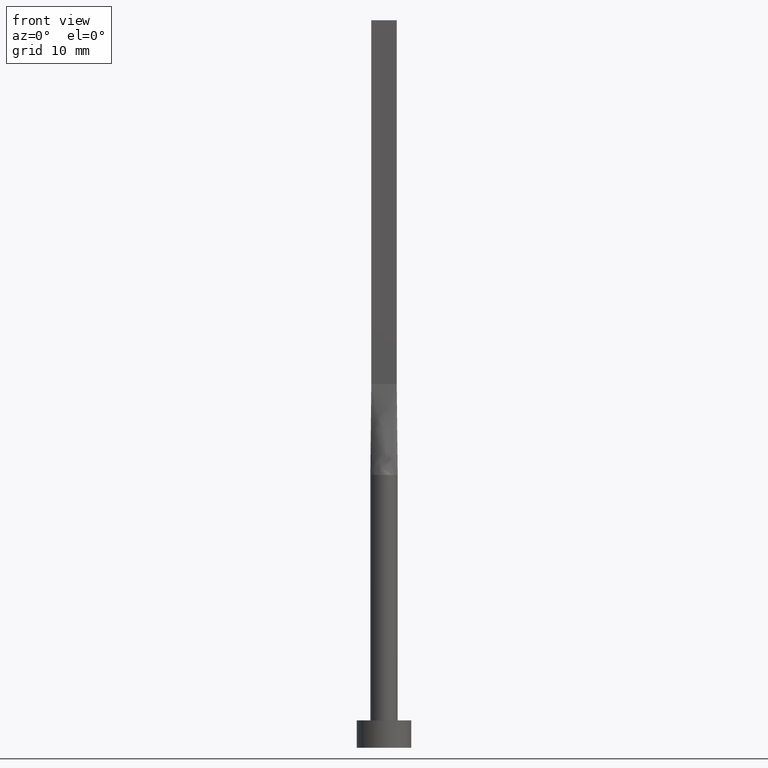
[diagram: clean part render]
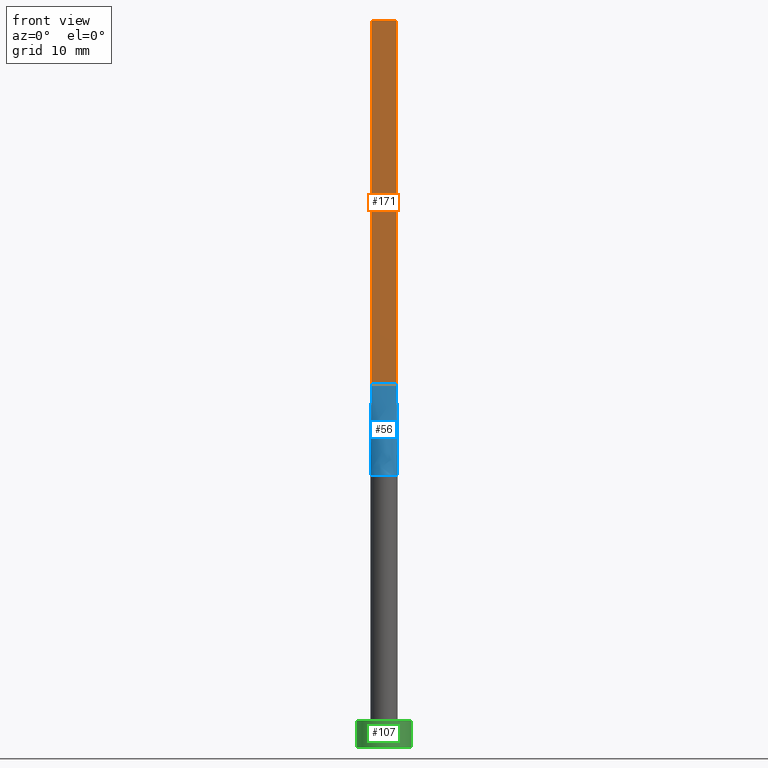
[diagram: same view with three faces highlighted in distinct colors, each labeled with its STEP entity id]
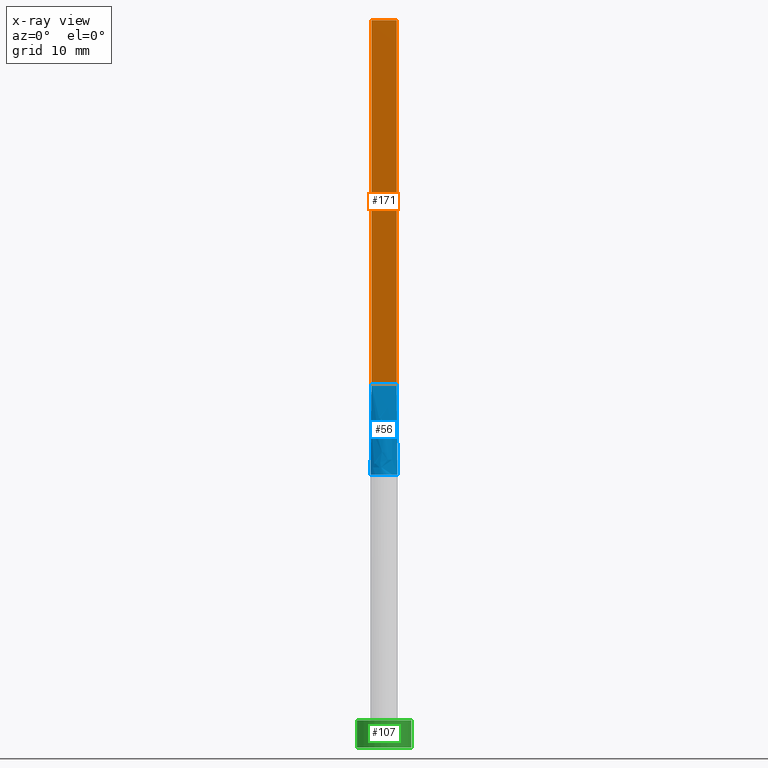
[diagram: x-ray of the same camera — body ghosted, the three highlighted faces saturated]
A machine part, front view with three faces highlighted in distinct colors.
The next image is the same camera in x-ray (body ghosted, the three faces saturated) — at least one of them is partly hidden behind the body in this view.
Their STEP definitions:

[orange] entity #171 — the highlighted planar face has unit normal (0, 1, -0).
#42 = EDGE_CURVE ( 'NONE', #307, #102, #297, .T. ) ;
#81 = LINE ( 'NONE', #575, #174 ) ;
#102 = VERTEX_POINT ( 'NONE', #488 ) ;
#103 = EDGE_CURVE ( 'NONE', #548, #376, #317, .T. ) ;
#104 = AXIS2_PLACEMENT_3D ( 'NONE', #170, #350, #211 ) ;
#143 = VECTOR ( 'NONE', #180, 1000.000000000000000 ) ;
#170 = CARTESIAN_POINT ( 'NONE',  ( -1.399999999999999911, -0.2499999999999996392, 80.00000000000000000 ) ) ;
#171 = ADVANCED_FACE ( 'NONE', ( #569 ), #389, .F. ) ;
#173 = DIRECTION ( 'NONE',  ( -0.000000000000000000, -0.000000000000000000, -1.000000000000000000 ) ) ;
#174 = VECTOR ( 'NONE', #173, 1000.000000000000000 ) ;
#180 = DIRECTION ( 'NONE',  ( 1.000000000000000000, -5.808225924029488744E-17, 0.000000000000000000 ) ) ;
#184 = VECTOR ( 'NONE', #257, 1000.000000000000000 ) ;
#204 = EDGE_CURVE ( 'NONE', #102, #376, #347, .T. ) ;
#211 = DIRECTION ( 'NONE',  ( -1.000000000000000000, 5.808225924029488744E-17, 0.000000000000000000 ) ) ;
#220 = CARTESIAN_POINT ( 'NONE',  ( -1.399999999999999911, -0.2499999999999996392, 80.00000000000000000 ) ) ;
#230 = CARTESIAN_POINT ( 'NONE',  ( 1.399999999999999911, -0.2499999999999997780, 40.00000000000000000 ) ) ;
#232 = ORIENTED_EDGE ( 'NONE', *, *, #272, .T. ) ;
#257 = DIRECTION ( 'NONE',  ( -0.000000000000000000, -0.000000000000000000, -1.000000000000000000 ) ) ;
#272 = EDGE_CURVE ( 'NONE', #307, #548, #81, .T. ) ;
#291 = ORIENTED_EDGE ( 'NONE', *, *, #103, .T. ) ;
#297 = LINE ( 'NONE', #300, #143 ) ;
#300 = CARTESIAN_POINT ( 'NONE',  ( -1.399999999999999911, -0.2499999999999996392, 80.00000000000000000 ) ) ;
#307 = VERTEX_POINT ( 'NONE', #220 ) ;
#317 = LINE ( 'NONE', #364, #561 ) ;
#347 = LINE ( 'NONE', #353, #184 ) ;
#349 = CARTESIAN_POINT ( 'NONE',  ( -1.399999999999999911, -0.2499999999999996392, 40.00000000000000000 ) ) ;
#350 = DIRECTION ( 'NONE',  ( 5.808225924029488744E-17, 1.000000000000000000, -0.000000000000000000 ) ) ;
#353 = CARTESIAN_POINT ( 'NONE',  ( 1.399999999999999911, -0.2499999999999997780, 80.00000000000000000 ) ) ;
#364 = CARTESIAN_POINT ( 'NONE',  ( -1.399999999999999911, -0.2499999999999996392, 40.00000000000000000 ) ) ;
#376 = VERTEX_POINT ( 'NONE', #230 ) ;
#381 = EDGE_LOOP ( 'NONE', ( #291, #510, #382, #232 ) ) ;
#382 = ORIENTED_EDGE ( 'NONE', *, *, #42, .F. ) ;
#389 = PLANE ( 'NONE',  #104 ) ;
#488 = CARTESIAN_POINT ( 'NONE',  ( 1.399999999999999911, -0.2499999999999997780, 80.00000000000000000 ) ) ;
#510 = ORIENTED_EDGE ( 'NONE', *, *, #204, .F. ) ;
#544 = DIRECTION ( 'NONE',  ( 1.000000000000000000, -5.808225924029488744E-17, 0.000000000000000000 ) ) ;
#548 = VERTEX_POINT ( 'NONE', #349 ) ;
#561 = VECTOR ( 'NONE', #544, 1000.000000000000000 ) ;
#569 = FACE_OUTER_BOUND ( 'NONE', #381, .T. ) ;
#575 = CARTESIAN_POINT ( 'NONE',  ( -1.399999999999999911, -0.2499999999999996392, 80.00000000000000000 ) ) ;

[blue] entity #56 — the highlighted face is a freeform B-spline surface patch.
#4 = CARTESIAN_POINT ( 'NONE',  ( -0.2093118330951414807, -1.500000000000000666, 30.00000000000000355 ) ) ;
#16 = CARTESIAN_POINT ( 'NONE',  ( -1.193588737715979731, -0.9257784320005619794, 30.00000000000000355 ) ) ;
#19 = CARTESIAN_POINT ( 'NONE',  ( -0.4666666666666677288, -0.2499999999999996669, 39.99999999999999289 ) ) ;
#25 = CARTESIAN_POINT ( 'NONE',  ( 1.476789766994309527, -0.2637122300648489515, 30.00000000000000000 ) ) ;
#27 = CARTESIAN_POINT ( 'NONE',  ( -0.7852726932053994968, -1.293660568283136136, 30.00000000000000711 ) ) ;
#29 = CARTESIAN_POINT ( 'NONE',  ( 0.000000000000000000, 0.000000000000000000, 30.00000000000000000 ) ) ;
#47 = CARTESIAN_POINT ( 'NONE',  ( -0.2333333333333344750, -0.2499999999999996669, 39.99999999999999289 ) ) ;
#49 = EDGE_CURVE ( 'NONE', #548, #464, #433, .T. ) ;
#54 = CARTESIAN_POINT ( 'NONE',  ( 1.416287091352355532, -0.5163978007200231701, 30.00000000000001066 ) ) ;
#56 = ADVANCED_FACE ( 'NONE', ( #348 ), #208, .T. ) ;
#71 = DIRECTION ( 'NONE',  ( -0.007663904067361702183, -0.001368554297743126936, -0.9999696953576046043 ) ) ;
#72 = LINE ( 'NONE', #431, #237 ) ;
#75 = DIRECTION ( 'NONE',  ( -0.007663904067361680499, 0.001368554297743197626, 0.9999696953576046043 ) ) ;
#93 = CARTESIAN_POINT ( 'NONE',  ( 0.2093118330951404815, -1.500000000000000444, 29.99999999999999645 ) ) ;
#97 = CARTESIAN_POINT ( 'NONE',  ( 1.455009719257778888, -0.3848231641531754121, 30.00000000000000355 ) ) ;
#103 = EDGE_CURVE ( 'NONE', #548, #376, #317, .T. ) ;
#114 = CARTESIAN_POINT ( 'NONE',  ( -0.8166666666666674290, -0.2499999999999996669, 39.99999999999999289 ) ) ;
#120 = CARTESIAN_POINT ( 'NONE',  ( -1.285860877433235405, -0.7868275653575071971, 30.00000000000001066 ) ) ;
#128 = CARTESIAN_POINT ( 'NONE',  ( -1.476780214353118348, -0.2637106662004926605, 30.00000000000000000 ) ) ;
#133 = CARTESIAN_POINT ( 'NONE',  ( -1.283333333333333437, -0.2499999999999996669, 39.99999999999999289 ) ) ;
#138 = CARTESIAN_POINT ( 'NONE',  ( -0.1166666666666678343, -0.2499999999999996669, 40.00000000000000000 ) ) ;
#141 = CARTESIAN_POINT ( 'NONE',  ( 1.283333333333333437, -0.2499999999999997780, 39.99999999999999289 ) ) ;
#189 = CARTESIAN_POINT ( 'NONE',  ( 0.2333333333333322268, -0.2499999999999996669, 39.99999999999999289 ) ) ;
#191 = CARTESIAN_POINT ( 'NONE',  ( 0.1166666666666655305, -0.2499999999999996669, 39.99999999999999289 ) ) ;
#193 = EDGE_CURVE ( 'NONE', #464, #568, #282, .T. ) ;
#208 = B_SPLINE_SURFACE_WITH_KNOTS ( 'NONE', 3, 1, ( 
 ( #533, #480 ),
 ( #425, #133 ),
 ( #435, #523 ),
 ( #120, #255 ),
 ( #16, #114 ),
 ( #428, #264 ),
 ( #27, #19 ),
 ( #210, #47 ),
 ( #4, #138 ),
 ( #93, #191 ),
 ( #370, #189 ),
 ( #323, #373 ),
 ( #496, #239 ),
 ( #285, #459 ),
 ( #279, #542 ),
 ( #54, #539 ),
 ( #97, #141 ),
 ( #493, #452 ) ),
 .UNSPECIFIED., .F., .F., .F.,
 ( 4, 2, 2, 2, 2, 2, 2, 2, 4 ),
 ( 2, 2 ),
 ( 0.000000000000000000, 0.1250000000000000000, 0.2500000000000000000, 0.3750000000000000000, 0.5000000000000000000, 0.6250000000000000000, 0.7500000000000000000, 0.8750000000000000000, 1.000000000000000000 ),
 ( 0.000000000000000000, 1.000000000000000000 ),
 .UNSPECIFIED. ) ;
#210 = CARTESIAN_POINT ( 'NONE',  ( -0.4178861784692555759, -1.454504042781961548, 30.00000000000000355 ) ) ;
#217 = CARTESIAN_POINT ( 'NONE',  ( -1.438320681631361619, -0.2568429788627425991, 35.00000000000000000 ) ) ;
#230 = CARTESIAN_POINT ( 'NONE',  ( 1.399999999999999911, -0.2499999999999997780, 40.00000000000000000 ) ) ;
#237 = VECTOR ( 'NONE', #75, 999.9999999999998863 ) ;
#239 = CARTESIAN_POINT ( 'NONE',  ( 0.5833333333333323711, -0.2499999999999996669, 39.99999999999999289 ) ) ;
#251 = ORIENTED_EDGE ( 'NONE', *, *, #49, .T. ) ;
#255 = CARTESIAN_POINT ( 'NONE',  ( -0.9333333333333340143, -0.2499999999999996669, 39.99999999999999289 ) ) ;
#263 = EDGE_CURVE ( 'NONE', #568, #376, #72, .T. ) ;
#264 = CARTESIAN_POINT ( 'NONE',  ( -0.5833333333333343695, -0.2499999999999996669, 39.99999999999999289 ) ) ;
#279 = CARTESIAN_POINT ( 'NONE',  ( 1.285860877433234961, -0.7868275653575079742, 30.00000000000000355 ) ) ;
#282 = CIRCLE ( 'NONE', #294, 1.500000000000000222 ) ;
#285 = CARTESIAN_POINT ( 'NONE',  ( 1.193588737715979509, -0.9257784320005624235, 29.99999999999999645 ) ) ;
#294 = AXIS2_PLACEMENT_3D ( 'NONE', #29, #395, #310 ) ;
#310 = DIRECTION ( 'NONE',  ( 1.000000000000000000, 0.000000000000000000, 0.000000000000000000 ) ) ;
#317 = LINE ( 'NONE', #364, #561 ) ;
#323 = CARTESIAN_POINT ( 'NONE',  ( 0.7852726932053983866, -1.293660568283137247, 30.00000000000000355 ) ) ;
#332 = ORIENTED_EDGE ( 'NONE', *, *, #193, .T. ) ;
#348 = FACE_OUTER_BOUND ( 'NONE', #367, .T. ) ;
#349 = CARTESIAN_POINT ( 'NONE',  ( -1.399999999999999911, -0.2499999999999996392, 40.00000000000000000 ) ) ;
#364 = CARTESIAN_POINT ( 'NONE',  ( -1.399999999999999911, -0.2499999999999996392, 40.00000000000000000 ) ) ;
#367 = EDGE_LOOP ( 'NONE', ( #332, #466, #509, #251 ) ) ;
#370 = CARTESIAN_POINT ( 'NONE',  ( 0.4178861784692542991, -1.454504042781961548, 30.00000000000000355 ) ) ;
#373 = CARTESIAN_POINT ( 'NONE',  ( 0.4666666666666656194, -0.2499999999999996669, 39.99999999999999289 ) ) ;
#376 = VERTEX_POINT ( 'NONE', #230 ) ;
#395 = DIRECTION ( 'NONE',  ( 0.000000000000000000, 0.000000000000000000, 1.000000000000000000 ) ) ;
#425 = CARTESIAN_POINT ( 'NONE',  ( -1.455009719257779111, -0.3848231641531742464, 30.00000000000000355 ) ) ;
#428 = CARTESIAN_POINT ( 'NONE',  ( -0.9436169880431074519, -1.179536671679307647, 29.99999999999999645 ) ) ;
#431 = CARTESIAN_POINT ( 'NONE',  ( 1.438320681631361397, -0.2568429788627430987, 35.00000000000000000 ) ) ;
#433 = LINE ( 'NONE', #217, #462 ) ;
#435 = CARTESIAN_POINT ( 'NONE',  ( -1.416287091352355532, -0.5163978007200222820, 30.00000000000000000 ) ) ;
#452 = CARTESIAN_POINT ( 'NONE',  ( 1.399999999999999911, -0.2499999999999997780, 40.00000000000000000 ) ) ;
#459 = CARTESIAN_POINT ( 'NONE',  ( 0.8166666666666659857, -0.2499999999999996669, 39.99999999999999289 ) ) ;
#462 = VECTOR ( 'NONE', #71, 999.9999999999998863 ) ;
#464 = VERTEX_POINT ( 'NONE', #128 ) ;
#466 = ORIENTED_EDGE ( 'NONE', *, *, #263, .T. ) ;
#480 = CARTESIAN_POINT ( 'NONE',  ( -1.399999999999999911, -0.2499999999999996392, 40.00000000000000000 ) ) ;
#493 = CARTESIAN_POINT ( 'NONE',  ( 1.476641363262723106, -0.2636859577254864750, 30.00000000000000000 ) ) ;
#496 = CARTESIAN_POINT ( 'NONE',  ( 0.9436169880431068968, -1.179536671679308535, 30.00000000000000000 ) ) ;
#509 = ORIENTED_EDGE ( 'NONE', *, *, #103, .F. ) ;
#523 = CARTESIAN_POINT ( 'NONE',  ( -1.166666666666666963, -0.2499999999999996669, 39.99999999999999289 ) ) ;
#533 = CARTESIAN_POINT ( 'NONE',  ( -1.476641363262723328, -0.2636859577254855869, 30.00000000000000000 ) ) ;
#539 = CARTESIAN_POINT ( 'NONE',  ( 1.166666666666666519, -0.2499999999999997780, 39.99999999999999289 ) ) ;
#542 = CARTESIAN_POINT ( 'NONE',  ( 0.9333333333333329040, -0.2499999999999997224, 39.99999999999999289 ) ) ;
#544 = DIRECTION ( 'NONE',  ( 1.000000000000000000, -5.808225924029488744E-17, 0.000000000000000000 ) ) ;
#548 = VERTEX_POINT ( 'NONE', #349 ) ;
#561 = VECTOR ( 'NONE', #544, 1000.000000000000000 ) ;
#568 = VERTEX_POINT ( 'NONE', #25 ) ;

[green] entity #107 — the highlighted cylindrical surface (edge-blend (fillet) strip) has radius 3 mm, axis along (-0, -0, -1).
#40 = DIRECTION ( 'NONE',  ( -1.000000000000000000, 0.000000000000000000, 0.000000000000000000 ) ) ;
#44 = DIRECTION ( 'NONE',  ( 1.000000000000000000, 0.000000000000000000, 0.000000000000000000 ) ) ;
#55 = VERTEX_POINT ( 'NONE', #212 ) ;
#62 = VERTEX_POINT ( 'NONE', #329 ) ;
#66 = VECTOR ( 'NONE', #178, 1000.000000000000000 ) ;
#107 = ADVANCED_FACE ( 'NONE', ( #140 ), #142, .T. ) ;
#117 = ORIENTED_EDGE ( 'NONE', *, *, #335, .F. ) ;
#139 = CARTESIAN_POINT ( 'NONE',  ( 0.000000000000000000, 0.000000000000000000, 0.000000000000000000 ) ) ;
#140 = FACE_OUTER_BOUND ( 'NONE', #287, .T. ) ;
#142 = CYLINDRICAL_SURFACE ( 'NONE', #236, 3.000000000000000444 ) ;
#145 = CIRCLE ( 'NONE', #468, 3.000000000000000444 ) ;
#157 = CARTESIAN_POINT ( 'NONE',  ( -3.000000000000000444, 0.000000000000000000, 0.000000000000000000 ) ) ;
#178 = DIRECTION ( 'NONE',  ( -0.000000000000000000, -0.000000000000000000, -1.000000000000000000 ) ) ;
#212 = CARTESIAN_POINT ( 'NONE',  ( -3.000000000000000444, 0.000000000000000000, 3.000000000000000000 ) ) ;
#218 = DIRECTION ( 'NONE',  ( 0.000000000000000000, 0.000000000000000000, 1.000000000000000000 ) ) ;
#226 = CARTESIAN_POINT ( 'NONE',  ( 3.000000000000000444, 3.673940397442060361E-16, 0.000000000000000000 ) ) ;
#236 = AXIS2_PLACEMENT_3D ( 'NONE', #278, #581, #40 ) ;
#238 = VECTOR ( 'NONE', #540, 1000.000000000000000 ) ;
#254 = LINE ( 'NONE', #537, #66 ) ;
#256 = CARTESIAN_POINT ( 'NONE',  ( 0.000000000000000000, 0.000000000000000000, 3.000000000000000000 ) ) ;
#261 = AXIS2_PLACEMENT_3D ( 'NONE', #256, #218, #558 ) ;
#275 = ORIENTED_EDGE ( 'NONE', *, *, #372, .T. ) ;
#278 = CARTESIAN_POINT ( 'NONE',  ( 0.000000000000000000, 0.000000000000000000, 3.000000000000000000 ) ) ;
#287 = EDGE_LOOP ( 'NONE', ( #117, #377, #275, #422 ) ) ;
#308 = CIRCLE ( 'NONE', #261, 3.000000000000000444 ) ;
#329 = CARTESIAN_POINT ( 'NONE',  ( 3.000000000000000444, 3.673940397442060361E-16, 3.000000000000000000 ) ) ;
#335 = EDGE_CURVE ( 'NONE', #62, #345, #254, .T. ) ;
#345 = VERTEX_POINT ( 'NONE', #226 ) ;
#372 = EDGE_CURVE ( 'NONE', #55, #550, #408, .T. ) ;
#377 = ORIENTED_EDGE ( 'NONE', *, *, #549, .F. ) ;
#400 = CARTESIAN_POINT ( 'NONE',  ( -3.000000000000000444, 0.000000000000000000, 3.000000000000000000 ) ) ;
#408 = LINE ( 'NONE', #400, #238 ) ;
#422 = ORIENTED_EDGE ( 'NONE', *, *, #512, .T. ) ;
#468 = AXIS2_PLACEMENT_3D ( 'NONE', #139, #494, #44 ) ;
#494 = DIRECTION ( 'NONE',  ( 0.000000000000000000, 0.000000000000000000, 1.000000000000000000 ) ) ;
#512 = EDGE_CURVE ( 'NONE', #550, #345, #145, .T. ) ;
#537 = CARTESIAN_POINT ( 'NONE',  ( 3.000000000000000444, 3.673940397442060361E-16, 3.000000000000000000 ) ) ;
#540 = DIRECTION ( 'NONE',  ( -0.000000000000000000, -0.000000000000000000, -1.000000000000000000 ) ) ;
#549 = EDGE_CURVE ( 'NONE', #55, #62, #308, .T. ) ;
#550 = VERTEX_POINT ( 'NONE', #157 ) ;
#558 = DIRECTION ( 'NONE',  ( 1.000000000000000000, 0.000000000000000000, 0.000000000000000000 ) ) ;
#581 = DIRECTION ( 'NONE',  ( -0.000000000000000000, -0.000000000000000000, -1.000000000000000000 ) ) ;